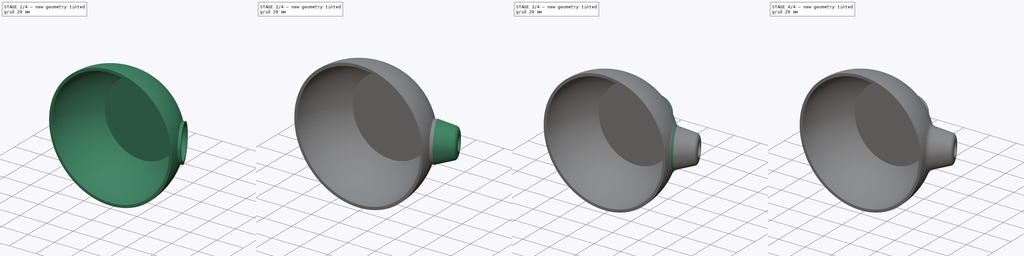
[diagram: build sequence overview — one tinted view per stage of 4, left to right]
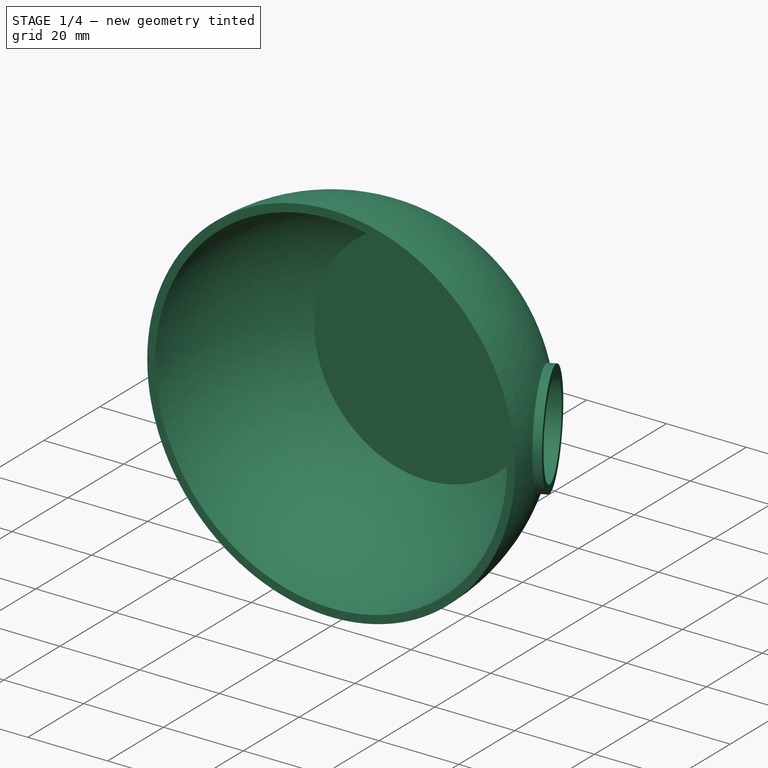
[diagram: stage 1 of 4 — iso view after this stage's code; geometry added in this stage tinted green]
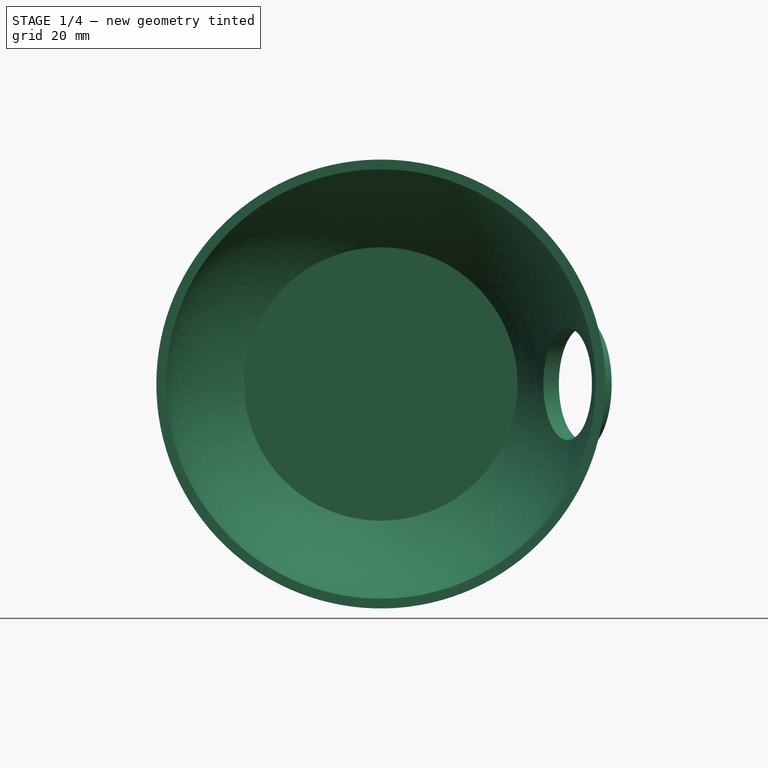
[diagram: stage 1 of 4 — front view after this stage's code; geometry added in this stage tinted green]
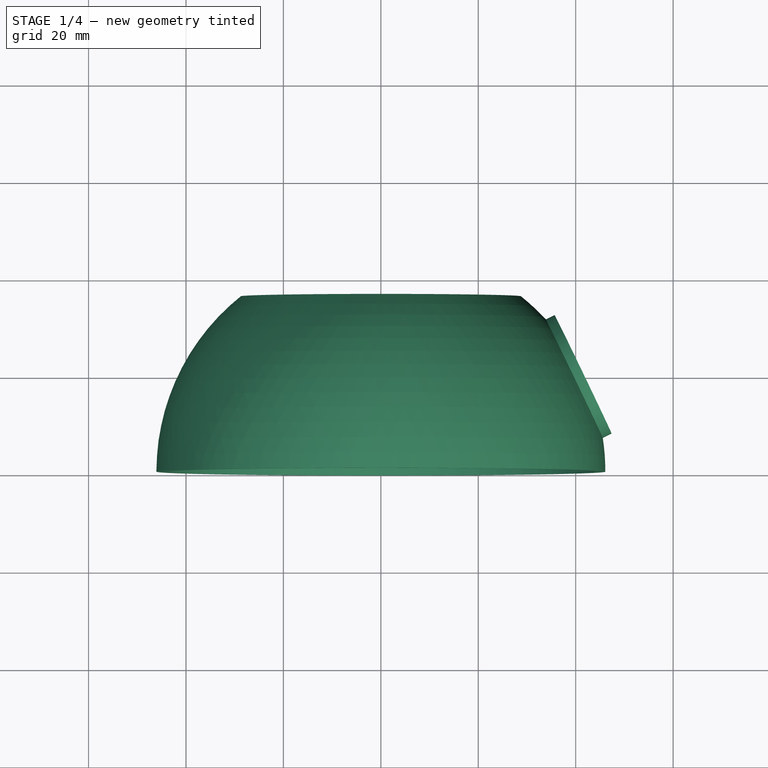
[diagram: stage 1 of 4 — top view after this stage's code; geometry added in this stage tinted green]
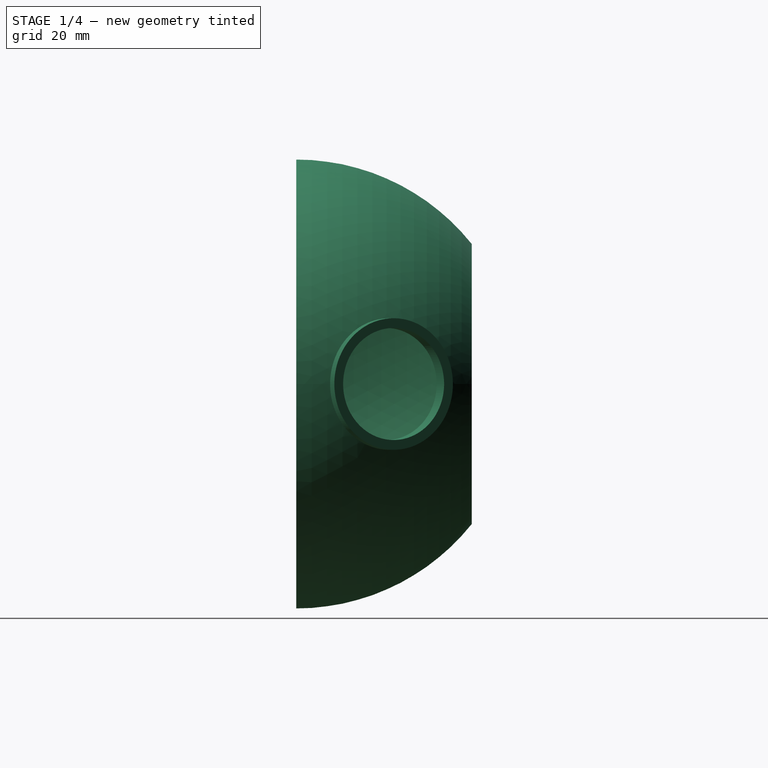
[diagram: stage 1 of 4 — right view after this stage's code; geometry added in this stage tinted green]
FCSTD DOCUMENT  (FreeCAD 0.19R24291 (Git))
Label: Vacuum_holder
License: All rights reserved
LicenseURL: http://en.wikipedia.org/wiki/All_rights_reserved
objects: Sketcher::SketchObject×11, PartDesign::Plane×4, PartDesign::Pocket×4, PartDesign::Fillet×4, PartDesign::Revolution×3, PartDesign::Line×2, PartDesign::Pad×2, PartDesign::Point×1, PartDesign::Body×1
note: 45 computed .brp shape members not serialized (recipe doc carries the construction recipe); baked Part::Feature solids carry a one-line shape summary decoded from their .brp

FEATURE [Sketcher::SketchObject] Sketch
  FullyConstrained = true
  MapMode = 5
  Support = -> [XY_Plane]
  sketch-geometry (6):
    g0: ArcOfCircle CenterX=0 CenterY=0 CenterZ=0 NormalX=0 NormalY=0 NormalZ=1 AngleXU=0 Radius=44.08 StartAngle=0 EndAngle=0.88092
    g1: ArcOfCircle CenterX=0 CenterY=0 CenterZ=0 NormalX=0 NormalY=0 NormalZ=1 AngleXU=0 Radius=46.08 StartAngle=0 EndAngle=0.896666
    g2: LineSegment StartX=28.764 StartY=36 StartZ=0 EndX=0 EndY=36 EndZ=0
    g3: LineSegment StartX=28.0543 StartY=34 StartZ=0 EndX=0 EndY=34 EndZ=0
    g4: LineSegment StartX=0 StartY=34 StartZ=0 EndX=0 EndY=36 EndZ=0
    g5: LineSegment StartX=44.08 StartY=0 StartZ=0 EndX=46.08 EndY=0 EndZ=0
  constraints (18):
    c: Coincident(g0,g-1)
    c: PointOnObject(g0,g-1)
    c: Coincident(g1,g0)
    c: PointOnObject(g1,g-1)
    c: Coincident(g2,g1)
    c: PointOnObject(g2,g-2)
    c: Horizontal(g2)
    c: Coincident(g3,g0)
    c: PointOnObject(g3,g-2)
    c: Horizontal(g3)
    c: Coincident(g4,g2)
    c: Coincident(g5,g0)
    c: Coincident(g5,g1)
    c: Diameter(g0) = 88.16
    c: Distance(g5) = 2
    c: Coincident(g4,g3)
    c: Distance(g3,g0) = 34
    c: Distance(g4) = 2
FEATURE [PartDesign::Revolution] Revolution
  Angle = 360
  Axis = (0,1,0)
  Base = (0,0,0)
  Profile = -> Sketch
  ReferenceAxis = -> Sketch [V_Axis]
  Reversed = true
FEATURE [PartDesign::Line] DatumLine
  AttacherType = Attacher::AttachEngineLine
  Length = 20
  MapMode = 43
  Placement = pos=(0,-1.42e-14,0) rot=(0.406207,0.646141,0.646141;2.3699rad)
  ResizeMode = 0
  Support = -> [Revolution]
FEATURE [PartDesign::Point] DatumPoint
  AttacherType = Attacher::AttachEnginePoint
  MapMode = 40
  Placement = pos=(41.526,19.974,0) rot=(0,0,1;0rad)
  Support = -> [DatumLine,Revolution]
FEATURE [PartDesign::Plane] DatumPlane
  Length = 114.243
  MapMode = 7
  Placement = pos=(41.526,19.974,0) rot=(0.406207,0.646141,0.646141;2.3699rad)
  ResizeMode = 0
  Support = -> [DatumLine,DatumPoint]
  Width = 110.921
FEATURE [Sketcher::SketchObject] Sketch001
  FullyConstrained = true
  MapMode = 5
  Placement = pos=(41.526,19.974,0) rot=(0.406207,0.646141,0.646141;2.3699rad)
  Support = -> [DatumPlane]
  sketch-geometry (2):
    g0: Circle CenterX=0 CenterY=0 CenterZ=0 NormalX=0 NormalY=0 NormalZ=1 AngleXU=0 Radius=11.5
    g1: Circle CenterX=0 CenterY=0 CenterZ=0 NormalX=0 NormalY=0 NormalZ=1 AngleXU=0 Radius=13.5
  constraints (4):
    c: Coincident(g0,g-1)
    c: Diameter(g0) = 23
    c: Coincident(g1,g0)
    c: Diameter(g1) = 27
FEATURE [Sketcher::SketchObject] Sketch002
  FullyConstrained = true
  MapMode = 5
  Placement = pos=(41.526,19.974,0) rot=(0.406207,0.646141,0.646141;2.3699rad)
  Support = -> [DatumPlane]
  sketch-geometry (1):
    g0: Circle CenterX=0 CenterY=0 CenterZ=0 NormalX=0 NormalY=0 NormalZ=1 AngleXU=0 Radius=11.5
  constraints (2):
    c: Coincident(g0,g-1)
    c: Diameter(g0) = 23
FEATURE [PartDesign::Pocket] Pocket
  BaseFeature = -> Revolution
  Length = 0
  Length2 = 100
  Profile = -> Sketch002
  Type = 3
  UpToFace = -> Revolution [Face1]
FEATURE [PartDesign::Pad] Pad
  BaseFeature = -> Pocket
  Direction = (1,1,1)
  Length = 10
  Length2 = 100
  Profile = -> Sketch001
  Type = 3
  UpToFace = -> Pocket [Face5]
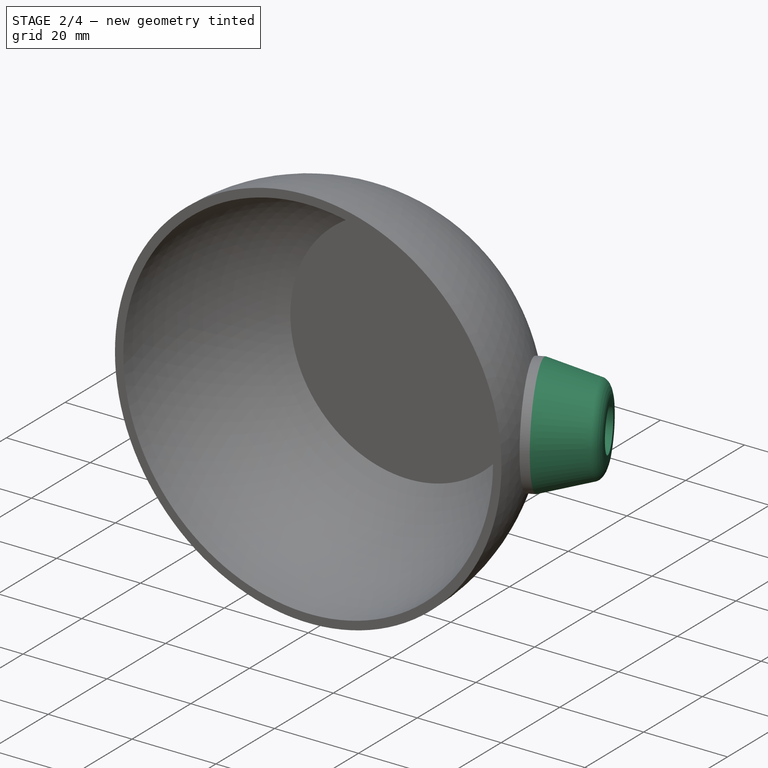
[diagram: stage 2 of 4 — iso view after this stage's code; geometry added in this stage tinted green]
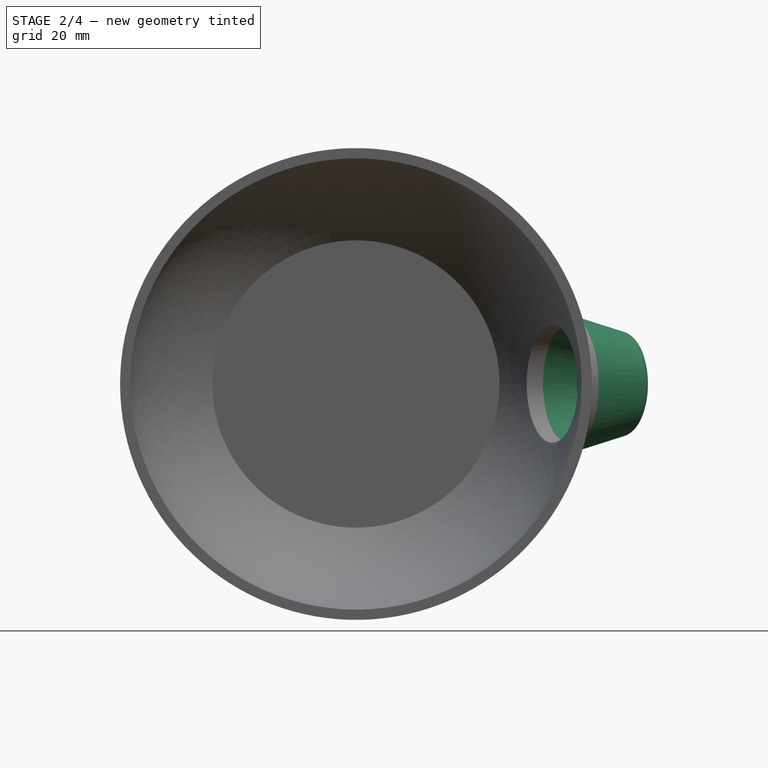
[diagram: stage 2 of 4 — front view after this stage's code; geometry added in this stage tinted green]
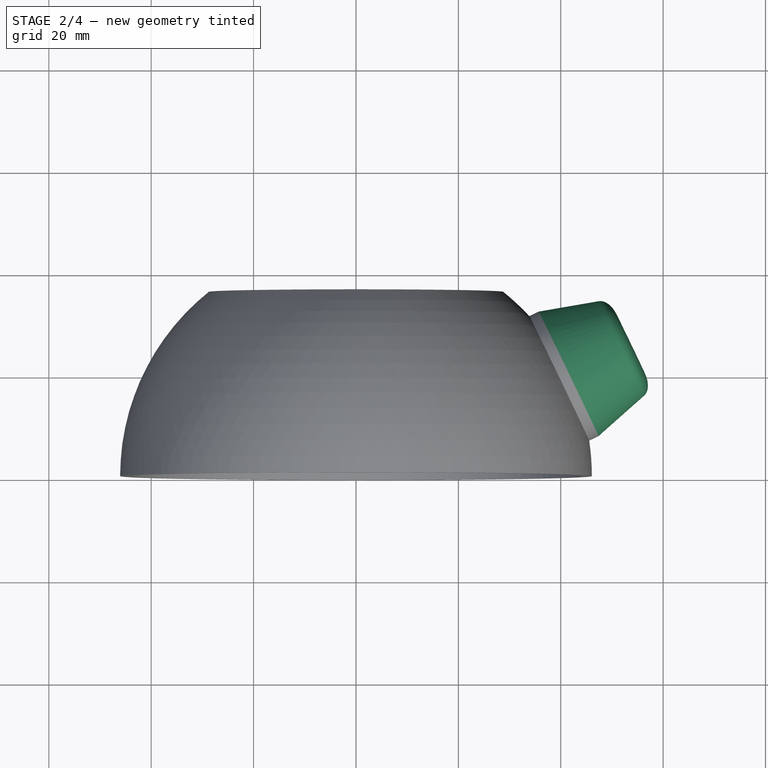
[diagram: stage 2 of 4 — top view after this stage's code; geometry added in this stage tinted green]
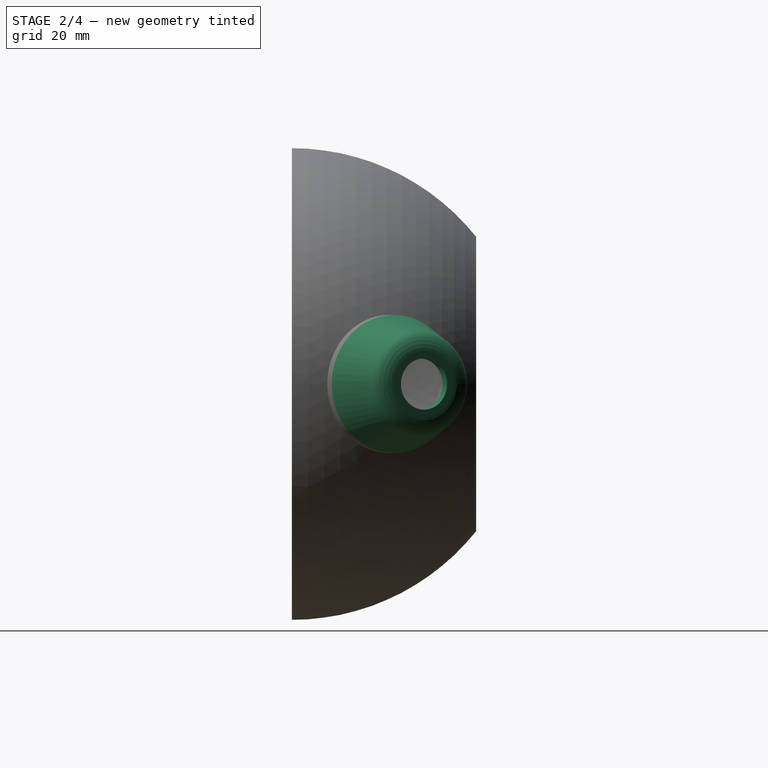
[diagram: stage 2 of 4 — right view after this stage's code; geometry added in this stage tinted green]
FEATURE [Sketcher::SketchObject] Sketch003
  ExternalGeometry = -> [Pad,DatumLine]
  FullyConstrained = false
  MapMode = 5
  Support = -> [XY_Plane]
  sketch-geometry (22):
    g0: LineSegment StartX=36.5411 StartY=30.3375 StartZ=0 EndX=43.1723 EndY=31.4856 EndZ=0
    g1: LineSegment StartX=43.1723 StartY=31.4856 StartZ=0 EndX=47.3596 EndY=22.78 EndZ=0
    g2: LineSegment StartX=47.3596 StartY=22.78 StartZ=0 EndX=53.6678 EndY=25.8143 EndZ=0
    g3: LineSegment StartX=53.6678 StartY=25.8143 StartZ=0 EndX=50.8503 EndY=31.6719 EndZ=0
    g4: LineSegment StartX=47.4272 StartY=34.1747 StartZ=0 EndX=35.6742 EndY=32.1398 EndZ=0
    g5: LineSegment StartX=54.5373 StartY=17.9343 StartZ=0 EndX=55.145 EndY=26.5732 EndZ=0
    g6: LineSegment StartX=55.145 StartY=26.5732 StartZ=0 EndX=47.9674 EndY=31.4189 EndZ=0
    g7: LineSegment StartX=47.9674 StartY=31.4189 StartZ=0 EndX=40.182 EndY=27.6258 EndZ=0
    g8: LineSegment StartX=40.182 StartY=27.6258 StartZ=0 EndX=39.5743 EndY=18.9869 EndZ=0
    g9: LineSegment StartX=39.5743 StartY=18.9869 StartZ=0 EndX=46.7519 EndY=14.1411 EndZ=0
    g10: LineSegment StartX=46.7519 StartY=14.1411 StartZ=0 EndX=54.5373 EndY=17.9343 EndZ=0
    g11: Circle CenterX=47.3596 CenterY=22.78 CenterZ=0 NormalX=0 NormalY=0 NormalZ=1 AngleXU=0 Radius=8.66025
    g12: GeomPoint X=43.6057 Y=30.5844 Z=0
    g13: LineSegment StartX=36.5411 StartY=30.3375 StartZ=0 EndX=35.6742 EndY=32.1398 EndZ=0
    g14: LineSegment StartX=53.6678 StartY=25.8143 StartZ=0 EndX=51.8655 EndY=24.9473 EndZ=0
    g15: LineSegment StartX=51.8655 StartY=24.9473 StartZ=0 EndX=49.6982 EndY=29.4532 EndZ=0
    g16: ArcOfEllipse CenterX=48.6543 CenterY=30.6156 CenterZ=0 NormalX=0 NormalY=0 NormalZ=1 MajorRadius=3.80084 MinorRadius=2.43683 AngleXU=2.01913 StartAngle=4.71239 EndAngle=6.10295
    g17: LineSegment StartX=47.0068 StartY=34.0408 StartZ=0 EndX=50.3019 EndY=27.1904 EndZ=0
    g18: LineSegment StartX=46.4583 StartY=29.5593 StartZ=0 EndX=50.8503 EndY=31.6719 EndZ=0
    g19: GeomPoint X=47.39 Y=33.2442 Z=0
    g20: GeomPoint X=49.9187 Y=27.987 Z=0
    g21: LineSegment StartX=33.3631 StartY=28.8088 StartZ=0 EndX=43.3328 EndY=8.08192 EndZ=0
  constraints (49):
    c: Coincident(g0,g-3)
    c: Coincident(g1,g0)
    c: PointOnObject(g1,g-5)
    c: PointOnObject(g2,g-5)
    c: Coincident(g4,g-4)
    c: Coincident(g1,g2)
    c: Distance(g2) = 7
    c: Coincident(g3,g2)
    c: Perpendicular(g2,g1)
    c: Perpendicular(g2,g3)
    c: Coincident(g5,g6)
    c: Coincident(g6,g7)
    c: Coincident(g7,g8)
    c: Coincident(g8,g9)
    c: Coincident(g9,g10)
    c: Coincident(g10,g5)
    c: Equal(g5, g6-g10) x5
    c: PointOnObject(g5,g11)
    c: PointOnObject(g6,g11)
    c: PointOnObject(g7,g11)
    c: PointOnObject(g8,g11)
    c: PointOnObject(g9,g11)
    c: PointOnObject(g10,g11)
    c: Coincident(g11,g1)
    c: Distance(g5,g8) = 15
    c: PointOnObject(g12,g11)
    c: PointOnObject(g12,g1)
    c: Distance(g0,g12) = 1
    c: Parallel(g0,g4)
    c: Distance(g3) = 6.5
    c: Coincident(g13,g0)
    c: Coincident(g13,g4)
    c: Distance(g0,g4) = 1.92382
    c: Coincident(g14,g2)
    c: PointOnObject(g14,g2)
    c: Distance(g2,g14) = 2
    c: Coincident(g15,g14)
    c: Perpendicular(g2,g15)
    c: Distance(g15) = 5
    c: PointOnObject(g4,g15)
    c: InternalAlignment(g17-g20 -> g16) x4
    c: Coincident(g16,g4)
    c: Coincident(g16,g3)
    c: Tangent(g4,g16)
    c: Tangent(g16,g3)
    c: Parallel(g17,g15)
    c: Coincident(g21,g-6)
    c: Coincident(g21,g-7)
    c: Distance(g14,g21) = 15
FEATURE [PartDesign::Revolution] Revolution001
  Angle = 360
  Axis = (0.901171,0.433464,0)
  Base = (0,-1.42e-14,0)
  BaseFeature = -> Pad
  Profile = -> Sketch003
  ReferenceAxis = -> DatumLine
  Reversed = true
FEATURE [Sketcher::SketchObject] Sketch004
  FullyConstrained = true
  MapMode = 5
  Placement = pos=(47.3596,22.78,0) rot=(0.747342,-0.469829,-0.469829;1.858rad)
  Support = -> [Revolution001]
  sketch-geometry (7):
    g0: LineSegment StartX=4.33013 StartY=7.5 StartZ=0 EndX=-4.33013 EndY=7.5 EndZ=0
    g1: LineSegment StartX=-4.33013 StartY=7.5 StartZ=0 EndX=-8.66025 EndY=-9e-16 EndZ=0
    g2: LineSegment StartX=-8.66025 StartY=-9e-16 StartZ=0 EndX=-4.33013 EndY=-7.5 EndZ=0
    g3: LineSegment StartX=-4.33013 StartY=-7.5 StartZ=0 EndX=4.33013 EndY=-7.5 EndZ=0
    g4: LineSegment StartX=4.33013 StartY=-7.5 StartZ=0 EndX=8.66025 EndY=1.8e-15 EndZ=0
    g5: LineSegment StartX=8.66025 StartY=1.8e-15 StartZ=0 EndX=4.33013 EndY=7.5 EndZ=0
    g6: Circle CenterX=0 CenterY=0 CenterZ=0 NormalX=0 NormalY=0 NormalZ=1 AngleXU=0 Radius=8.66025
  constraints (16):
    c: Coincident(g0,g1)
    c: Coincident(g1,g2)
    c: Coincident(g2,g3)
    c: Coincident(g3,g4)
    c: Coincident(g4,g5)
    c: Coincident(g5,g0)
    c: Equal(g0, g1-g5) x5
    c: PointOnObject(g0,g6)
    c: PointOnObject(g1,g6)
    c: PointOnObject(g2,g6)
    c: PointOnObject(g3,g6)
    c: PointOnObject(g4,g6)
    c: PointOnObject(g5,g6)
    c: Coincident(g6,g-1)
    c: Horizontal(g0)
    c: Distance(g3,g0) = 15
FEATURE [PartDesign::Pocket] Pocket001
  BaseFeature = -> Revolution001
  Length = 5
  Length2 = 100
  Profile = -> Sketch004
  Type = 0
FEATURE [Sketcher::SketchObject] Sketch005
  FullyConstrained = true
  MapMode = 5
  Placement = pos=(51.8655,24.9473,-1e-16) rot=(0.747342,-0.469829,-0.469829;1.858rad)
  Support = -> [Pocket001]
  sketch-geometry (1):
    g0: Circle CenterX=0 CenterY=0 CenterZ=0 NormalX=0 NormalY=0 NormalZ=1 AngleXU=0 Radius=5
  constraints (2):
    c: Coincident(g0,g-1)
    c: Diameter(g0) = 10
FEATURE [PartDesign::Pocket] Pocket002
  BaseFeature = -> Pocket001
  Length = 0
  Length2 = 100
  Profile = -> Sketch005
  Type = 3
  UpToFace = -> Pocket001 [Face18]
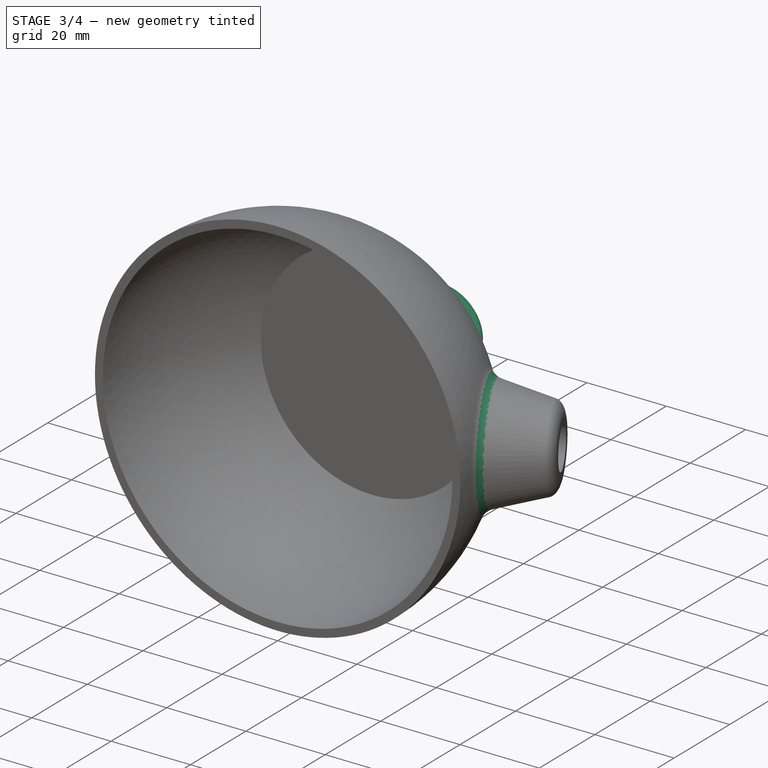
[diagram: stage 3 of 4 — iso view after this stage's code; geometry added in this stage tinted green]
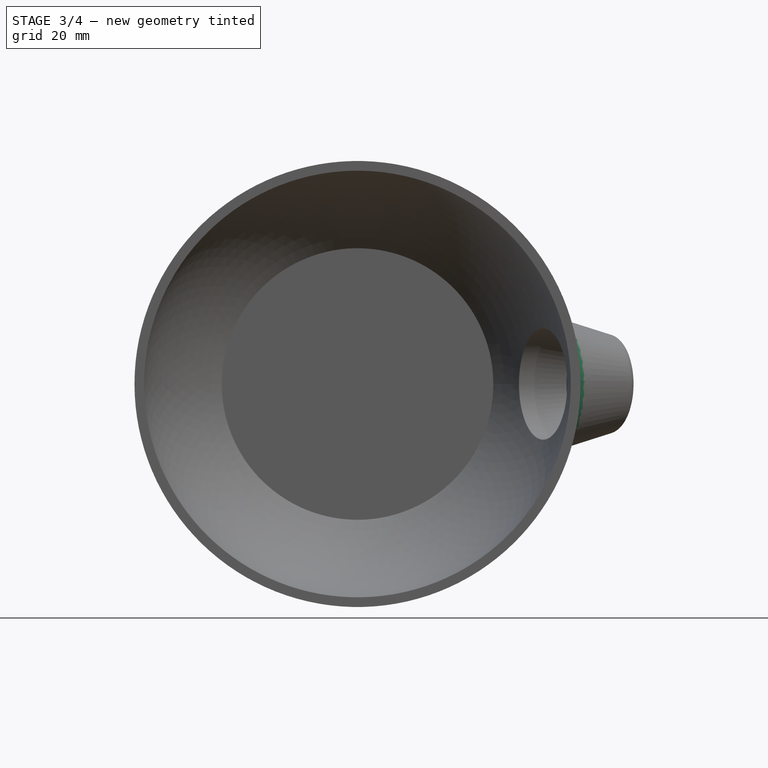
[diagram: stage 3 of 4 — front view after this stage's code; geometry added in this stage tinted green]
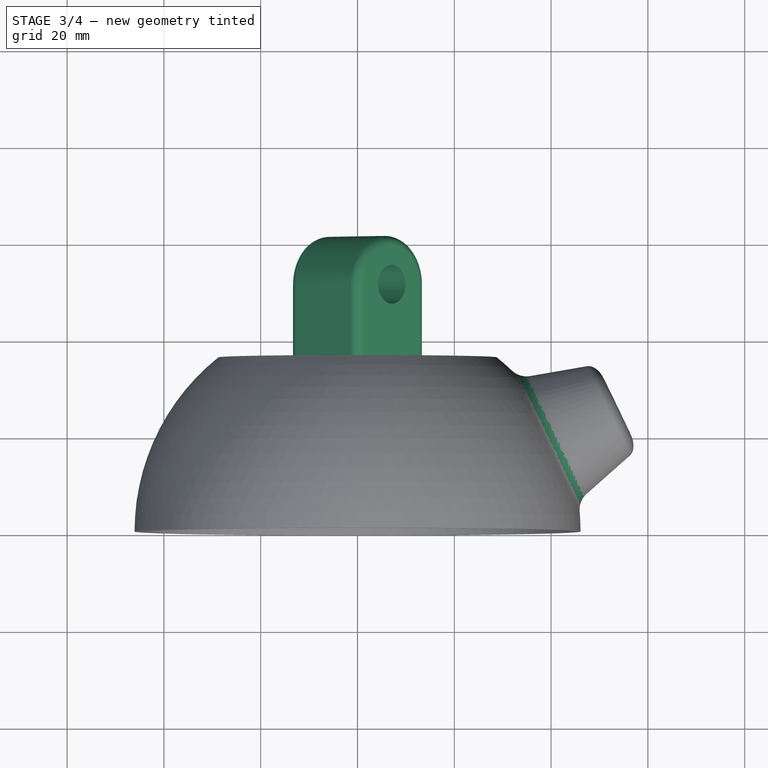
[diagram: stage 3 of 4 — top view after this stage's code; geometry added in this stage tinted green]
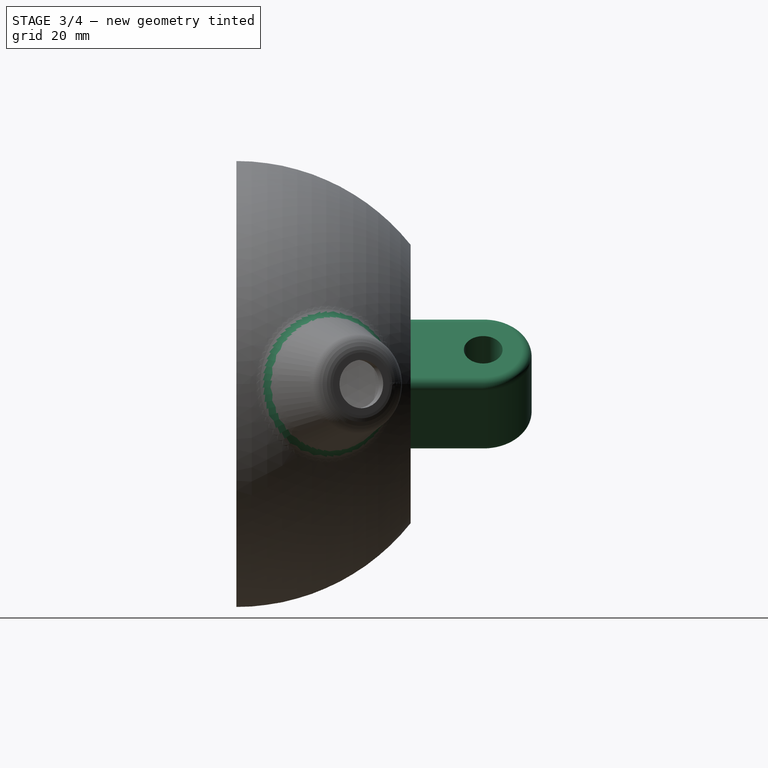
[diagram: stage 3 of 4 — right view after this stage's code; geometry added in this stage tinted green]
FEATURE [PartDesign::Plane] DatumPlane001
  AttachmentOffset = pos=(0,0,0) rot=(0.357407,0.862856,-0.357407;1.71777rad)
  Length = 78.8956
  MapMode = 5
  Placement = pos=(0,36,0) rot=(-0.678598,0.678598,0.281085;3.68962rad)
  ResizeMode = 0
  Support = -> [Pocket002]
  Width = 149.147
FEATURE [Sketcher::SketchObject] Sketch006
  FullyConstrained = true
  MapMode = 5
  Placement = pos=(0,36,0) rot=(-0.678598,0.678598,0.281085;3.68962rad)
  Support = -> [DatumPlane001]
  sketch-geometry (5):
    g0: Circle CenterX=-15 CenterY=0 CenterZ=0 NormalX=0 NormalY=0 NormalZ=1 AngleXU=0 Radius=4
    g1: ArcOfCircle CenterX=-15 CenterY=0 CenterZ=0 NormalX=0 NormalY=0 NormalZ=1 AngleXU=0 Radius=10 StartAngle=1.5708 EndAngle=4.71238
    g2: LineSegment StartX=-15 StartY=-10 StartZ=0 EndX=0 EndY=-10 EndZ=0
    g3: LineSegment StartX=-15 StartY=10 StartZ=0 EndX=0 EndY=10 EndZ=0
    g4: LineSegment StartX=0 StartY=-10 StartZ=0 EndX=0 EndY=10 EndZ=0
  constraints (15):
    c: PointOnObject(g0,g-1)
    c: Diameter(g0) = 8
    c: Distance(g-1,g0) = 15
    c: Coincident(g1,g0)
    c: Coincident(g2,g1)
    c: PointOnObject(g2,g-2)
    c: Horizontal(g2)
    c: Coincident(g3,g1)
    c: PointOnObject(g3,g-2)
    c: Horizontal(g3)
    c: Tangent(g3,g1)
    c: Tangent(g2,g1)
    c: Diameter(g1) = 20
    c: Coincident(g4,g2)
    c: Coincident(g4,g3)
FEATURE [PartDesign::Pad] Pad001
  BaseFeature = -> Pocket002
  Direction = (1,1,1)
  Length = 10
  Length2 = 10
  Profile = -> Sketch006
  Type = 4
FEATURE [PartDesign::Plane] DatumPlane002
  Length = 110.921
  MapMode = 9
  Placement = pos=(43.3328,8.08192,2e-15) rot=(-0.216997,0.951748,0.216997;1.62023rad)
  ResizeMode = 0
  Width = 114.243
FEATURE [PartDesign::Line] DatumLine001
  AttacherType = Attacher::AttachEngineLine
  Length = 20
  MapMode = 29
  Placement = pos=(38.3479,18.4454,-4e-16) rot=(0.951748,0.216997,0.216997;1.62023rad)
  ResizeMode = 0
  Support = -> [Pad001]
FEATURE [Sketcher::SketchObject] Sketch007
  ExternalGeometry = -> [Pad001]
  FullyConstrained = true
  MapMode = 5
  Placement = pos=(-7.07107,-3e-16,-7.07107) rot=(0.92388,0,-0.382683;3.14159rad)
  Support = -> [Pad001]
  sketch-geometry (7):
    g0: LineSegment StartX=3.75278 StartY=-44.5 StartZ=0 EndX=-3.75278 EndY=-44.5 EndZ=0
    g1: LineSegment StartX=-3.75278 StartY=-44.5 StartZ=0 EndX=-7.50555 EndY=-51 EndZ=0
    g2: LineSegment StartX=-7.50555 StartY=-51 StartZ=0 EndX=-3.75278 EndY=-57.5 EndZ=0
    g3: LineSegment StartX=-3.75278 StartY=-57.5 StartZ=0 EndX=3.75278 EndY=-57.5 EndZ=0
    g4: LineSegment StartX=3.75278 StartY=-57.5 StartZ=0 EndX=7.50555 EndY=-51 EndZ=0
    g5: LineSegment StartX=7.50555 StartY=-51 StartZ=0 EndX=3.75278 EndY=-44.5 EndZ=0
    g6: Circle CenterX=-8.69e-14 CenterY=-51 CenterZ=0 NormalX=0 NormalY=0 NormalZ=1 AngleXU=0 Radius=7.50555
  constraints (16):
    c: Coincident(g0,g1)
    c: Coincident(g1,g2)
    c: Coincident(g2,g3)
    c: Coincident(g3,g4)
    c: Coincident(g4,g5)
    c: Coincident(g5,g0)
    c: Equal(g0, g1-g5) x5
    c: PointOnObject(g0,g6)
    c: PointOnObject(g1,g6)
    c: PointOnObject(g2,g6)
    c: PointOnObject(g3,g6)
    c: PointOnObject(g4,g6)
    c: PointOnObject(g5,g6)
    c: Coincident(g6,g-3)
    c: Distance(g3,g0) = 13
    c: Horizontal(g3)
FEATURE [PartDesign::Pocket] Pocket003
  BaseFeature = -> Pad001
  Length = 2
  Length2 = 100
  Profile = -> Sketch007
  Type = 0
FEATURE [Sketcher::SketchObject] Sketch008
  ExternalGeometry = -> [Pocket003]
  FullyConstrained = true
  MapMode = 5
  Placement = pos=(0,36,0) rot=(-0.678598,0.678598,0.281085;3.68962rad)
  Support = -> [DatumPlane001]
  sketch-geometry (3):
    g0: ArcOfCircle CenterX=-4 CenterY=-14 CenterZ=0 NormalX=0 NormalY=0 NormalZ=1 AngleXU=0 Radius=4 StartAngle=5.23505e-07 EndAngle=1.5708
    g1: LineSegment StartX=0 StartY=-10 StartZ=0 EndX=-5.48e-13 EndY=-14 EndZ=0
    g2: LineSegment StartX=0 StartY=-10 StartZ=0 EndX=-4 EndY=-10 EndZ=0
  constraints (9):
    c: PointOnObject(g0,g-2)
    c: Coincident(g1,g-3)
    c: Coincident(g1,g0)
    c: Coincident(g2,g1)
    c: Coincident(g2,g0)
    c: Horizontal(g2)
    c: Tangent(g2,g0)
    c: Tangent(g0,g1)
    c: Diameter(g0) = 8
FEATURE [PartDesign::Fillet] Fillet
  Base = -> Pocket003 [Edge35,Edge36,Edge41,Edge39,Edge40,Edge34]
  BaseFeature = -> Pocket003
  Radius = 2
  SupportTransform = false
FEATURE [Sketcher::SketchObject] Sketch009
  ExternalGeometry = -> [Fillet]
  FullyConstrained = false
  MapMode = 5
  Placement = pos=(0,36,0) rot=(0,0.707107,0.707107;3.14159rad)
  Support = -> [Fillet]
  sketch-geometry (13):
    g0: LineSegment StartX=-8.48527 StartY=-8.4853 StartZ=0 EndX=-14.1421 EndY=-2.82844 EndZ=0
    g1: LineSegment StartX=-14.1421 StartY=2.82843 StartZ=0 EndX=-2.82843 EndY=14.1421 EndZ=0
    g2: LineSegment StartX=2.82843 StartY=14.1421 StartZ=0 EndX=14.1421 EndY=2.82843 EndZ=0
    g3: LineSegment StartX=14.1421 StartY=-2.82843 StartZ=0 EndX=2.82843 EndY=-14.1421 EndZ=0
    g4: LineSegment StartX=-2.82841 StartY=-14.1421 StartZ=0 EndX=-8.48527 EndY=-8.4853 EndZ=0
    g5: LineSegment StartX=-5.60641 StartY=8.53572 StartZ=0 EndX=-7.02062 EndY=9.94994 EndZ=0
    g6: LineSegment StartX=6.89087 StartY=7.25127 StartZ=0 EndX=8.30508 EndY=8.66548 EndZ=0
    g7: LineSegment StartX=8.44001 StartY=-5.70212 StartZ=0 EndX=9.85423 EndY=-7.11634 EndZ=0
    g8: LineSegment StartX=-2.50778 StartY=-11.6344 StartZ=0 EndX=-3.92199 EndY=-13.0486 EndZ=0
    g9: ArcOfCircle CenterX=5e-16 CenterY=11.3137 CenterZ=0 NormalX=0 NormalY=0 NormalZ=1 AngleXU=0 Radius=4 StartAngle=0.785398 EndAngle=2.35619
    g10: ArcOfCircle CenterX=11.3137 CenterY=5.1e-15 CenterZ=0 NormalX=0 NormalY=0 NormalZ=1 AngleXU=0 Radius=4 StartAngle=5.49779 EndAngle=7.06858
    g11: ArcOfCircle CenterX=1.7e-15 CenterY=-11.3137 CenterZ=0 NormalX=0 NormalY=0 NormalZ=1 AngleXU=0 Radius=4 StartAngle=3.927 EndAngle=5.49779
    g12: ArcOfCircle CenterX=-11.3137 CenterY=-5e-15 CenterZ=0 NormalX=0 NormalY=0 NormalZ=1 AngleXU=0 Radius=4 StartAngle=2.35619 EndAngle=3.927
  constraints (39):
    c: PointOnObject(g5,g-9)
    c: PointOnObject(g5,g1)
    c: PointOnObject(g6,g-7)
    c: PointOnObject(g6,g2)
    c: PointOnObject(g7,g-3)
    c: PointOnObject(g7,g3)
    c: PointOnObject(g8,g-5)
    c: PointOnObject(g8,g4)
    c: Coincident(g4,g0)
    c: Perpendicular(g-5,g8)
    c: Perpendicular(g-9,g5)
    c: Perpendicular(g1,g5)
    c: Perpendicular(g8,g0)
    c: Perpendicular(g4,g8)
    c: Perpendicular(g7,g-3)
    c: Perpendicular(g3,g7)
    c: Perpendicular(g-7,g6)
    c: Perpendicular(g6,g2)
    c: Coincident(g9,g-10)
    c: Coincident(g9,g1)
    c: Coincident(g9,g2)
    c: Coincident(g10,g-6)
    c: Coincident(g10,g2)
    c: Coincident(g10,g3)
    c: Coincident(g11,g-4)
    c: Coincident(g11,g3)
    c: Coincident(g11,g4)
    c: Coincident(g12,g-8)
    c: Coincident(g12,g0)
    c: Coincident(g12,g1)
    c: Equal(g8,g5)
    c: Equal(g5,g6)
    c: Equal(g6,g7)
    c: Distance(g7) = 2
    c: Tangent(g10,g2)
    c: Tangent(g12,g1)
    c: Tangent(g9,g1)
    c: Tangent(g11,g4)
    c: Equal(g4,g0)
FEATURE [Sketcher::SketchObject] Sketch010
  FullyConstrained = false
  MapMode = 5
  Support = -> [XY_Plane]
  sketch-geometry (3):
    g0: LineSegment StartX=33.8521 StartY=31.2634 StartZ=0 EndX=35.6742 EndY=32.1398 EndZ=0
    g1: ArcOfCircle CenterX=34.9158 CenterY=36.5204 CenterZ=0 NormalX=0 NormalY=0 NormalZ=1 AngleXU=0 Radius=4.44574 StartAngle=3.94945 EndAngle=4.88382
    g2: ArcOfCircle CenterX=0 CenterY=0 CenterZ=0 NormalX=0 NormalY=0 NormalZ=1 AngleXU=0 Radius=46.08 StartAngle=0.745663 EndAngle=0.807857
  constraints (5):
    c: Coincident(g1,g0)
    c: Coincident(g2,g-1)
    c: Coincident(g2,g0)
    c: Coincident(g2,g1)
    c: Tangent(g2,g1)
FEATURE [PartDesign::Revolution] Revolution002
  Angle = 360
  Axis = (0.901171,0.433464,0)
  Base = (0,-1.42e-14,0)
  BaseFeature = -> Fillet
  Profile = -> Sketch010
  ReferenceAxis = -> DatumLine
  Reversed = true
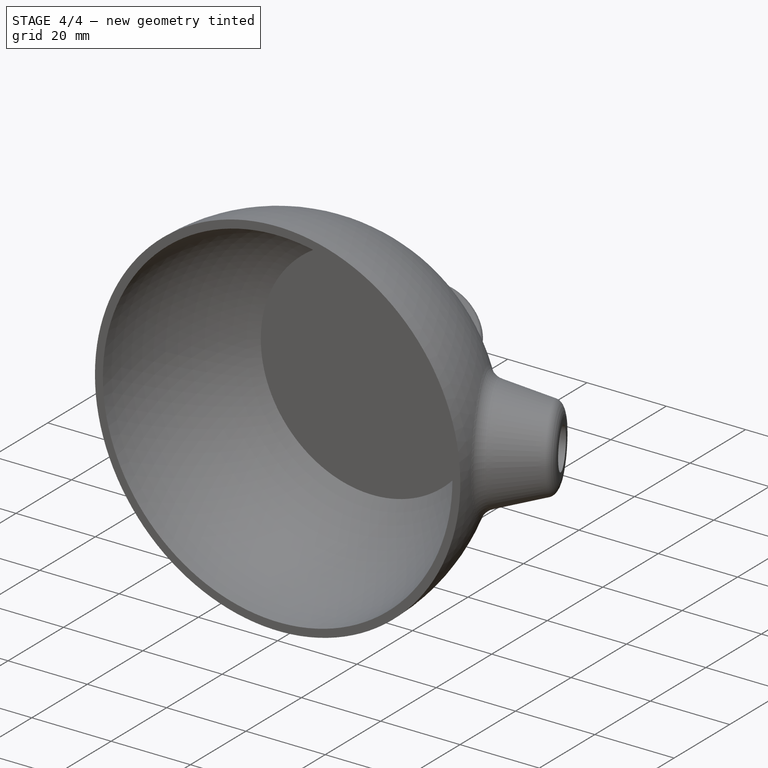
[diagram: stage 4 of 4 — iso view after this stage's code; geometry added in this stage tinted green]
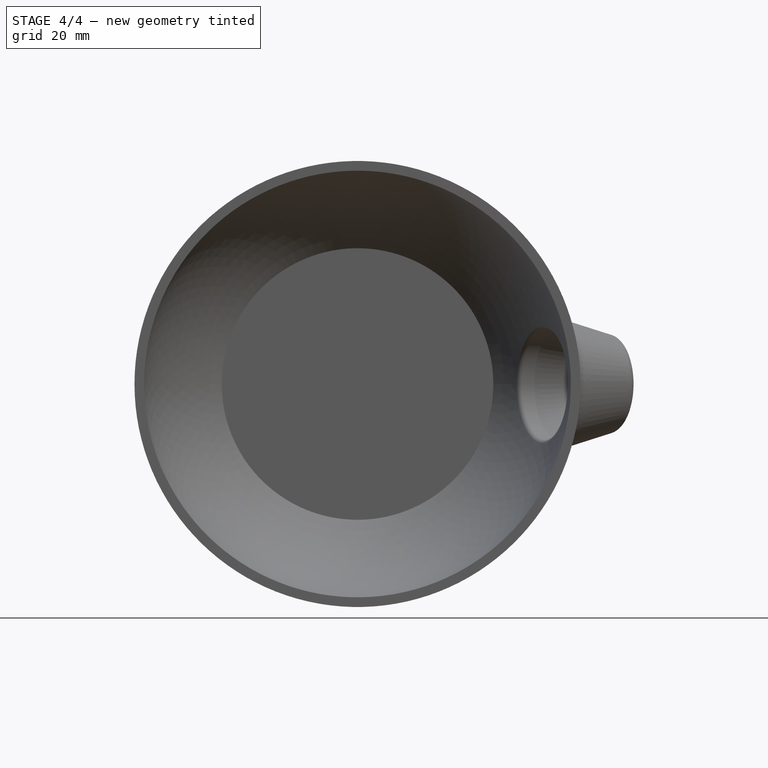
[diagram: stage 4 of 4 — front view after this stage's code; geometry added in this stage tinted green]
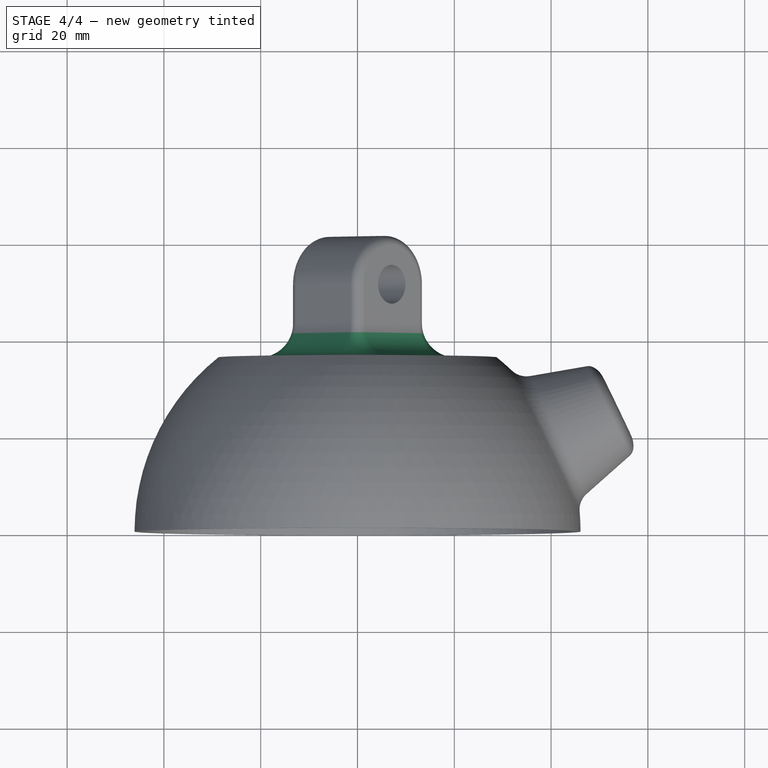
[diagram: stage 4 of 4 — top view after this stage's code; geometry added in this stage tinted green]
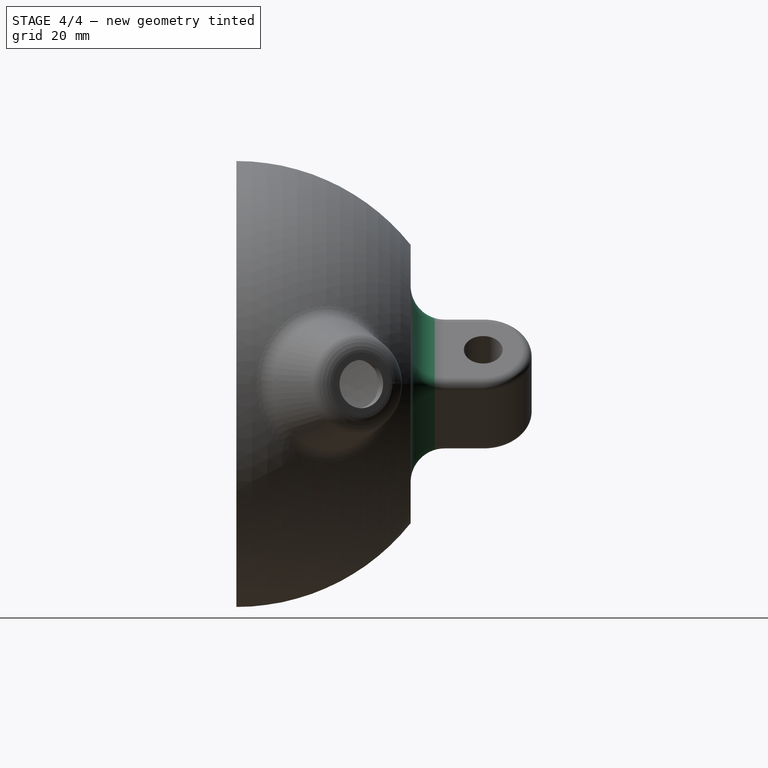
[diagram: stage 4 of 4 — right view after this stage's code; geometry added in this stage tinted green]
FEATURE [PartDesign::Plane] DatumPlane003
  AttachmentOffset = pos=(0,0,0) rot=(0,-1,0;1.5708rad)
  Length = 157.502
  MapMode = 7
  Placement = pos=(-1.76384,51,-12.3783) rot=(0.281085,-0.678598,-0.678598;3.68962rad)
  ResizeMode = 0
  Support = -> [Fillet]
  Width = 157.502
FEATURE [PartDesign::Fillet] Fillet001
  Base = -> Revolution002 [Edge4,Edge2,Edge1,Edge3,Edge6,Edge7,Edge8,Edge5]
  BaseFeature = -> Revolution002
  Radius = 7
  Refine = true
  SupportTransform = false
FEATURE [PartDesign::Fillet] Fillet002
  Base = -> Fillet001 [Edge91]
  BaseFeature = -> Fillet001
  Radius = 1
  Refine = true
  SupportTransform = false
FEATURE [PartDesign::Fillet] Fillet003
  Base = -> Fillet002 [Edge20]
  BaseFeature = -> Fillet002
  Radius = 1
  Refine = true
  SupportTransform = false
FEATURE [PartDesign::Body] Body
  Group = -> [Sketch,Revolution,DatumLine,DatumPoint,DatumPlane,Sketch001,Sketch002,Pocket,Pad,Sketch003,Revolution001,Sketch004,Pocket001,Sketch005,Pocket002,DatumPlane001,Sketch006,Pad001,DatumPlane002,DatumLine001,Sketch007,Pocket003,Sketch008,Fillet,Sketch009,Sketch010,Revolution002,DatumPlane003,Fillet001,Fillet002,Fillet003]
  Origin = -> Origin
  Tip = -> Fillet003
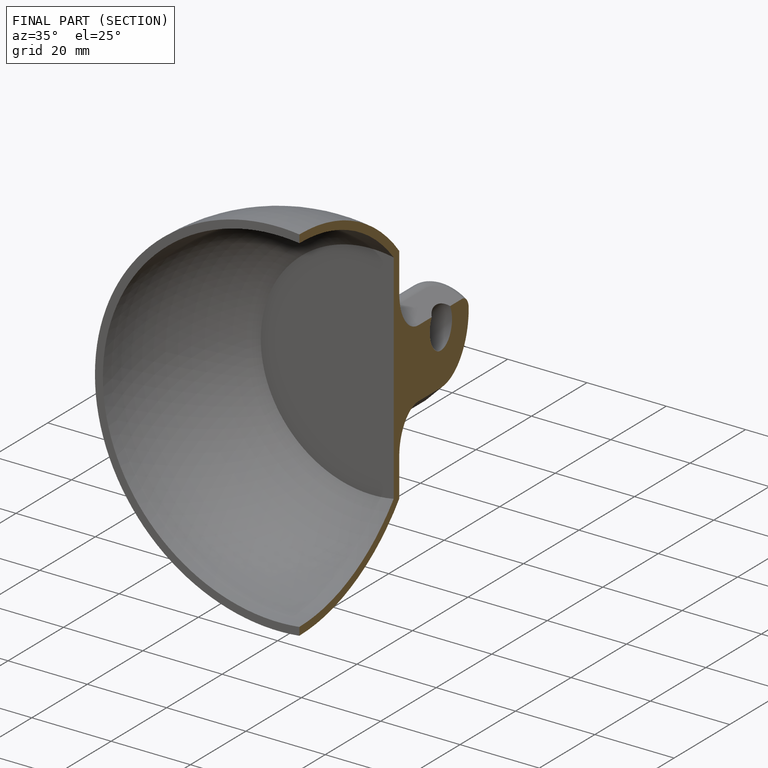
[diagram: finished part — half-section view (interior)]
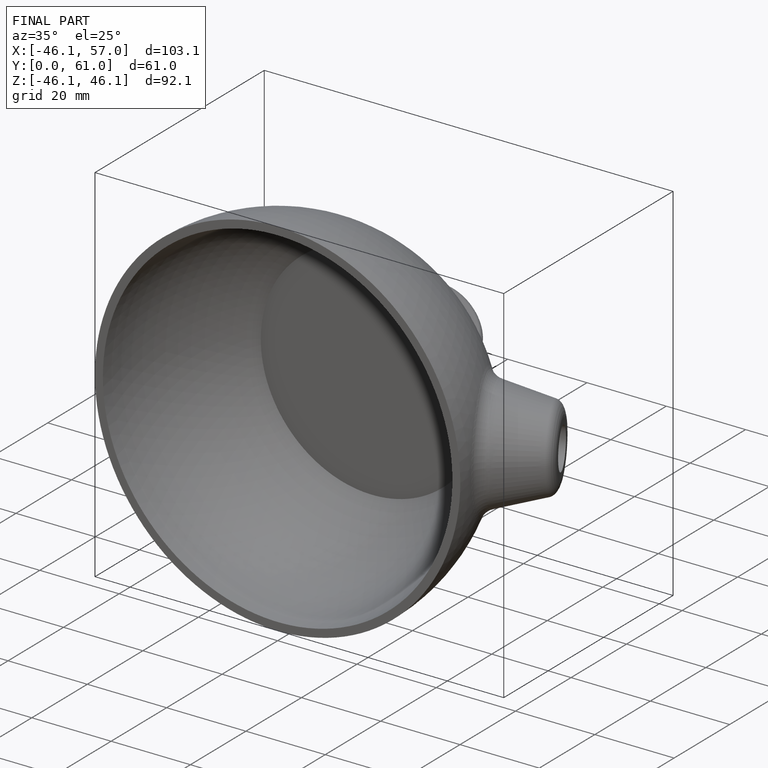
[diagram: finished part — iso view with bounding-box wireframe]
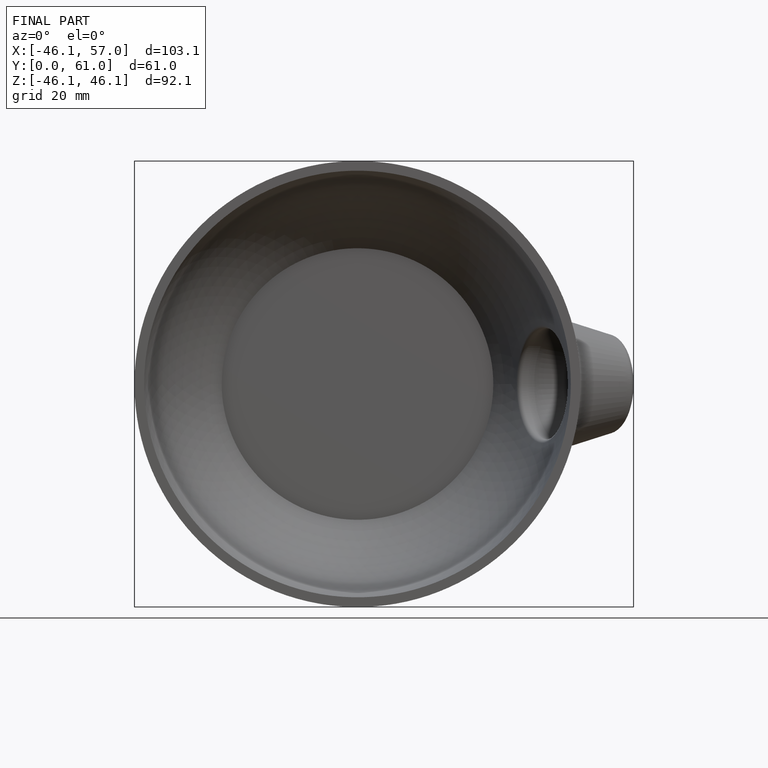
[diagram: finished part — front view with bounding-box wireframe]
